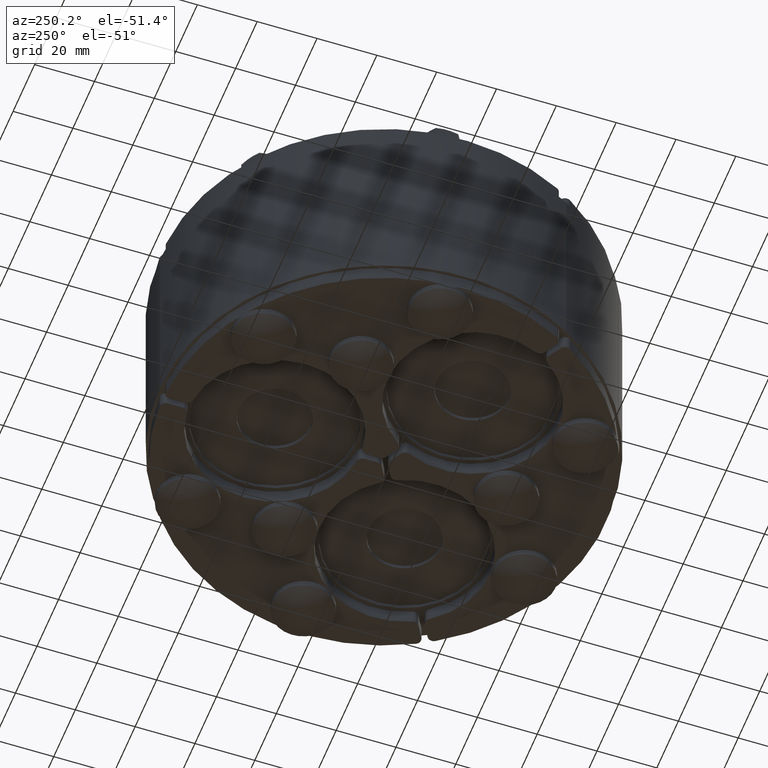
[diagram: clean part render]
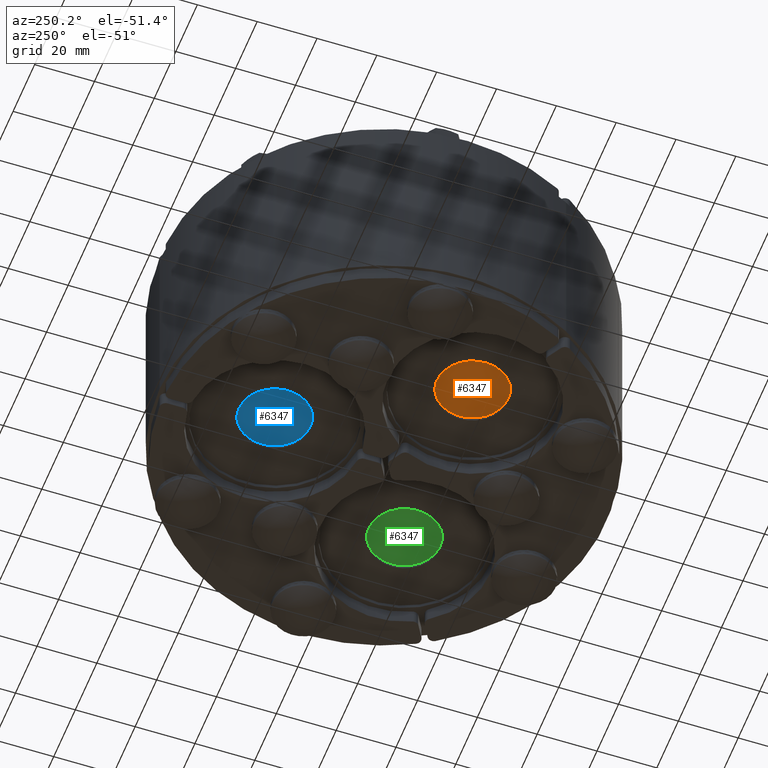
[diagram: same view with three faces highlighted in distinct colors, each labeled with its STEP entity id]
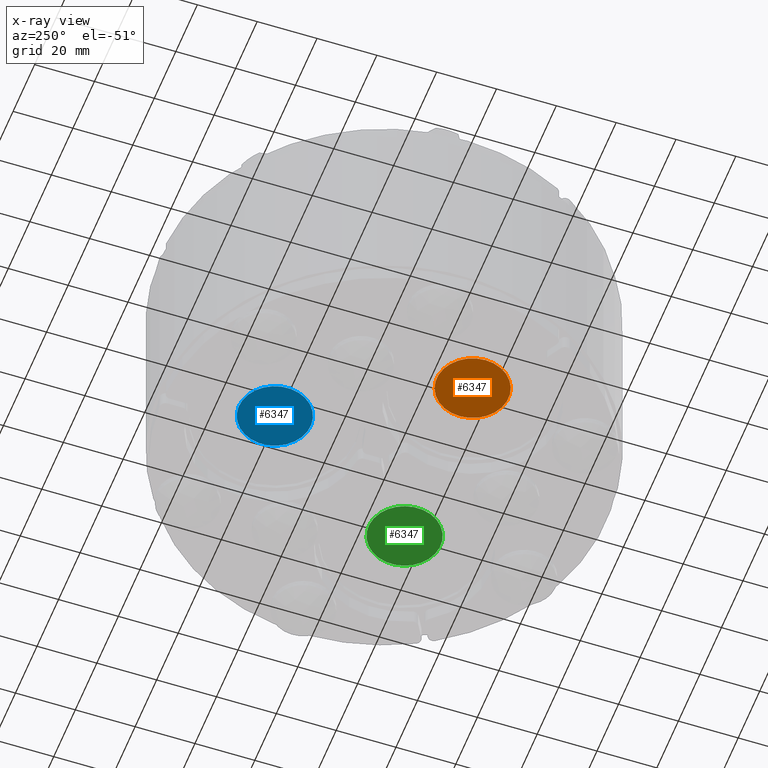
[diagram: x-ray of the same camera — body ghosted, the three highlighted faces saturated]
A machine part, auxiliary view with three faces highlighted in distinct colors.
The next image is the same camera in x-ray (body ghosted, the three faces saturated) — at least one of them is partly hidden behind the body in this view.
Their STEP definitions:

[orange] entity #6347 — the highlighted planar face has unit normal (0, 0, -1).
#6331=CARTESIAN_POINT('',(0.0,0.0,-30.0));
#6332=DIRECTION('',(0.0,0.0,-1.0));
#6333=DIRECTION('',(-1.0,0.0,0.0));
#6334=AXIS2_PLACEMENT_3D('',#6331,#6332,#6333);
#6335=PLANE('',#6334);
#6336=CARTESIAN_POINT('',(12.000000000000002,1.469576E-015,-30.0));
#6337=VERTEX_POINT('',#6336);
#6338=CARTESIAN_POINT('',(0.0,0.0,-30.0));
#6339=DIRECTION('',(0.0,0.0,1.0));
#6340=DIRECTION('',(-1.0,0.0,0.0));
#6341=AXIS2_PLACEMENT_3D('',#6338,#6339,#6340);
#6342=CIRCLE('',#6341,12.000000000000002);
#6343=EDGE_CURVE('',#6337,#6337,#6342,.T.);
#6344=ORIENTED_EDGE('',*,*,#6343,.F.);
#6345=EDGE_LOOP('',(#6344));
#6346=FACE_OUTER_BOUND('',#6345,.T.);
#6347=ADVANCED_FACE('',(#6346),#6335,.T.);

[blue] entity #6347 — the highlighted planar face has unit normal (0, -0, -1).
#6331=CARTESIAN_POINT('',(0.0,0.0,-30.0));
#6332=DIRECTION('',(0.0,0.0,-1.0));
#6333=DIRECTION('',(-1.0,0.0,0.0));
#6334=AXIS2_PLACEMENT_3D('',#6331,#6332,#6333);
#6335=PLANE('',#6334);
#6336=CARTESIAN_POINT('',(12.000000000000002,1.469576E-015,-30.0));
#6337=VERTEX_POINT('',#6336);
#6338=CARTESIAN_POINT('',(0.0,0.0,-30.0));
#6339=DIRECTION('',(0.0,0.0,1.0));
#6340=DIRECTION('',(-1.0,0.0,0.0));
#6341=AXIS2_PLACEMENT_3D('',#6338,#6339,#6340);
#6342=CIRCLE('',#6341,12.000000000000002);
#6343=EDGE_CURVE('',#6337,#6337,#6342,.T.);
#6344=ORIENTED_EDGE('',*,*,#6343,.F.);
#6345=EDGE_LOOP('',(#6344));
#6346=FACE_OUTER_BOUND('',#6345,.T.);
#6347=ADVANCED_FACE('',(#6346),#6335,.T.);

[green] entity #6347 — the highlighted planar face has unit normal (-0, 0, -1).
#6331=CARTESIAN_POINT('',(0.0,0.0,-30.0));
#6332=DIRECTION('',(0.0,0.0,-1.0));
#6333=DIRECTION('',(-1.0,0.0,0.0));
#6334=AXIS2_PLACEMENT_3D('',#6331,#6332,#6333);
#6335=PLANE('',#6334);
#6336=CARTESIAN_POINT('',(12.000000000000002,1.469576E-015,-30.0));
#6337=VERTEX_POINT('',#6336);
#6338=CARTESIAN_POINT('',(0.0,0.0,-30.0));
#6339=DIRECTION('',(0.0,0.0,1.0));
#6340=DIRECTION('',(-1.0,0.0,0.0));
#6341=AXIS2_PLACEMENT_3D('',#6338,#6339,#6340);
#6342=CIRCLE('',#6341,12.000000000000002);
#6343=EDGE_CURVE('',#6337,#6337,#6342,.T.);
#6344=ORIENTED_EDGE('',*,*,#6343,.F.);
#6345=EDGE_LOOP('',(#6344));
#6346=FACE_OUTER_BOUND('',#6345,.T.);
#6347=ADVANCED_FACE('',(#6346),#6335,.T.);